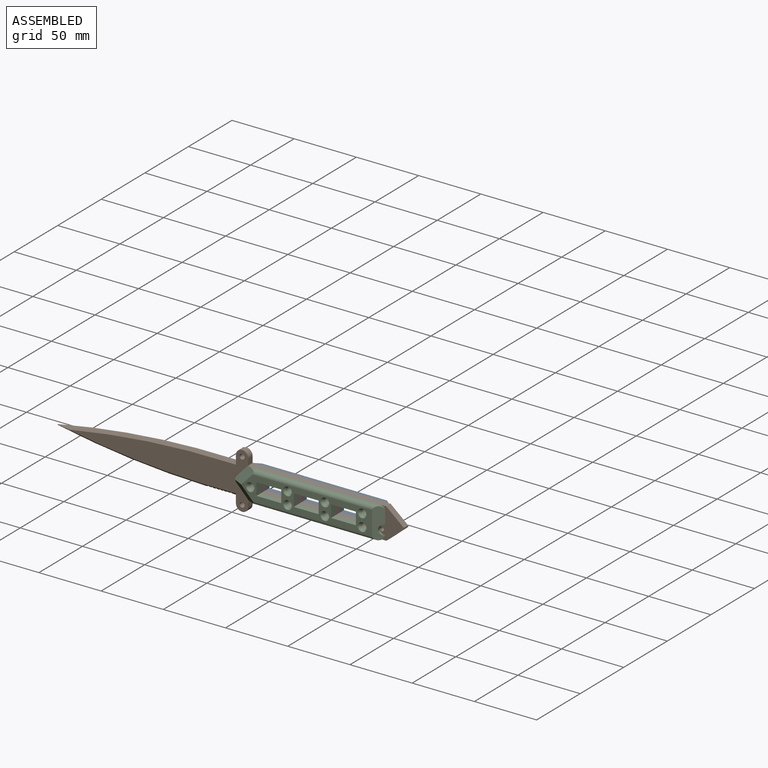
[diagram: assembled view]
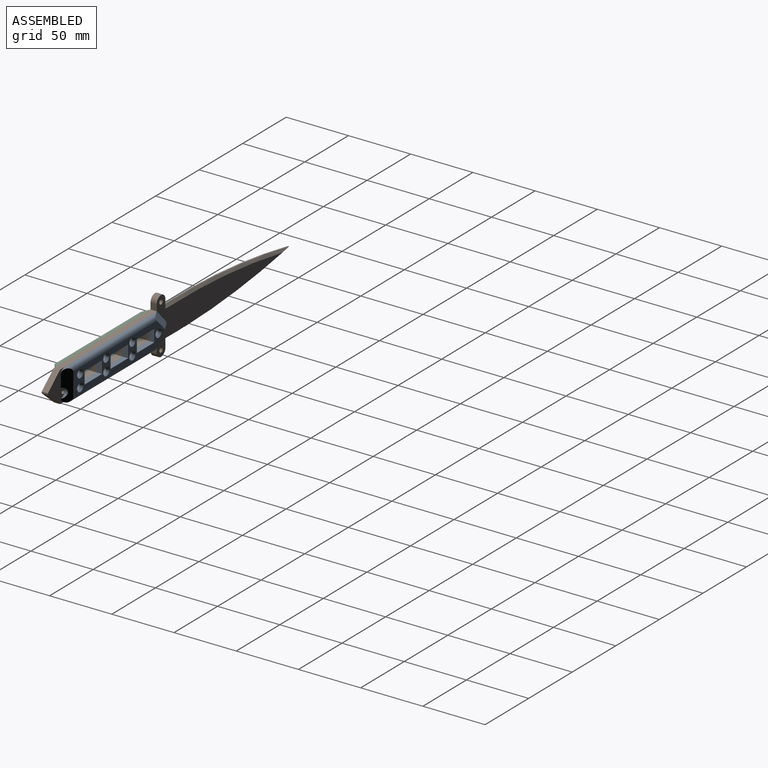
[diagram: assembled view, second angle]
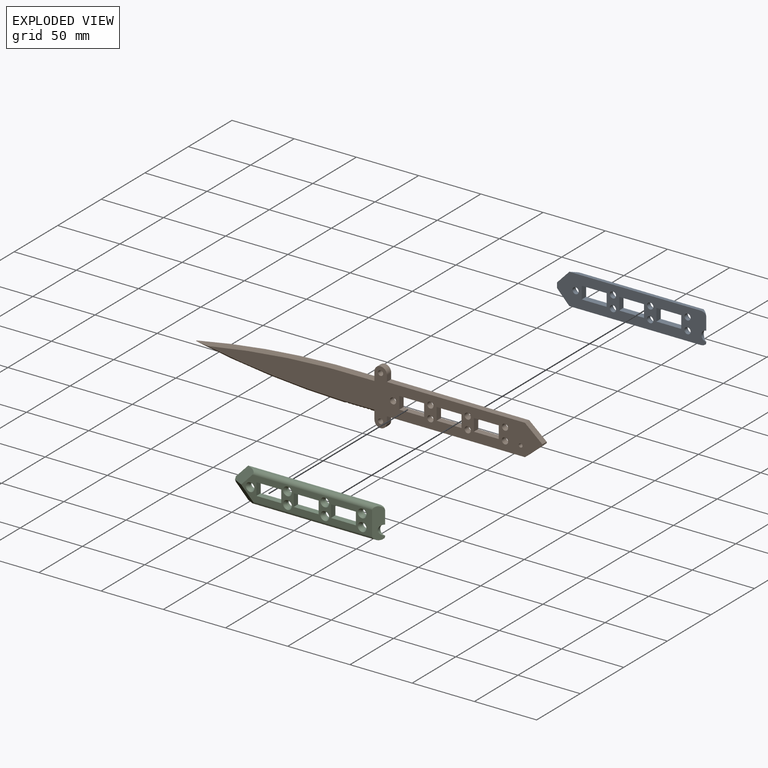
[diagram: exploded view]
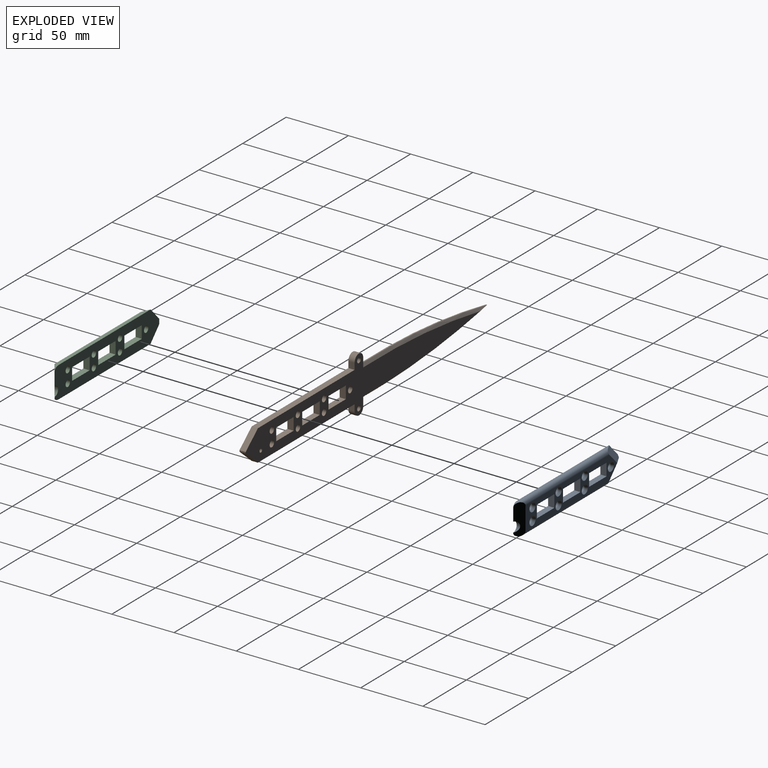
[diagram: exploded view, second angle]
ASSEMBLY  parts=3 mates=2
PART A: 39 faces, bbox 120x5x25 mm
  f0: plane 9.94x5mm, normal (1,0,0), area 49.7mm2, adj f1,f17,f25,f26
  f1: plane 20.01x5mm, normal (0,0,-1), area 100mm2, adj f0,f2,f25,f26
  f2: plane 9.94x5mm, normal (-1,0,0), area 49.7mm2, adj f1,f17,f25,f26
  f3: plane 20.01x5mm, normal (0,0,1), area 100.1mm2, adj f4,f19,f25,f26
  f4: plane 9.94x5mm, normal (1,0,0), area 49.7mm2, adj f3,f5,f25,f26
  f5: plane 20.01x5mm, normal (0,0,-1), area 100.1mm2, adj f4,f19,f25,f26
  f6: plane 19.99x5mm, normal (0,0,1), area 99.9mm2, adj f7,f23,f25,f26
  f7: plane 9.94x5mm, normal (1,0,0), area 49.7mm2, adj f6,f8,f25,f26
  f8: plane 19.99x5mm, normal (0,0,-1), area 99.9mm2, adj f7,f23,f25,f26
  f9: plane 105.06x2mm, normal (0,0,-1), area 206.3mm2, adj f10,f26,f34,f37
  f10: extruded ~4.95x3.54mm, area 8.4mm2, adj f9,f11,f26,f36,f37
  f11: cylinder r=3.97mm len=7.95mm, axis (0,-1,0), area 22.6mm2, adj f10,f26,f36
  f12: extruded ~4.95x3.76mm, area 8.4mm2, adj f13,f26,f36,f38
  f13: plane 105.06x2mm, normal (0,0,1), area 206.2mm2, adj f12,f26,f35,f38
  f14: plane 4.02x0.99mm, normal (-1,0,0), area 2mm2, adj f26,f34,f35
  f15: cylinder r=2.51mm len=5.02mm, axis (0,-1,0), area 47.4mm2, adj f26,f28
  f16: cylinder r=2.51mm len=5.02mm, axis (0,-1,0), area 47.3mm2, adj f26,f30
  f17: plane 20.01x5mm, normal (0,0,1), area 100mm2, adj f0,f2,f25,f26
  f18: cylinder r=2.51mm len=5.02mm, axis (0,-1,0), area 47.3mm2, adj f26,f29
  f19: plane 9.94x5mm, normal (-1,0,0), area 49.7mm2, adj f3,f5,f25,f26
  f20: cylinder r=2.5mm len=5.01mm, axis (0,-1,0), area 47.2mm2, adj f26,f33
  f21: cylinder r=2.49mm len=4.98mm, axis (0,-1,0), area 46.9mm2, adj f26,f32
  f22: cylinder r=2.48mm len=4.96mm, axis (0,-1,0), area 46.8mm2, adj f26,f31
  f23: plane 9.94x5mm, normal (-1,0,0), area 49.7mm2, adj f6,f8,f25,f26
  f24: cylinder r=2.48mm len=4.97mm, axis (0,-1,0), area 46.8mm2, adj f26,f27
  f25: plane 105.23x18.97mm, normal (0,1,0), area 1045.6mm2, adj f0,f1,f2,f3,f4,f5,f6,f7
  f26: plane 119.98x24.97mm, normal (0,-1,0), area 2127.3mm2, adj f0,f1,f2,f3,f4,f5,f6,f7
  f27: cone r=2.48mm half-angle=26.6deg, axis (0,1,0), area 41.9mm2, adj f24,f25
  f28: cone r=2.51mm half-angle=26.6deg, axis (0,1,0), area 42.3mm2, adj f15,f25
  f29: cone r=2.51mm half-angle=26.6deg, axis (0,1,0), area 42.3mm2, adj f18,f25
  f30: cone r=2.51mm half-angle=26.6deg, axis (0,1,0), area 42.3mm2, adj f16,f25
  f31: cone r=2.48mm half-angle=26.6deg, axis (0,1,0), area 41.9mm2, adj f22,f25
  f32: cone r=2.49mm half-angle=26.6deg, axis (0,1,0), area 42mm2, adj f21,f25
  f33: cone r=2.5mm half-angle=26.6deg, axis (0,1,0), area 42.2mm2, adj f20,f25
  f34: plane 17.43x12.51mm, normal (-0.42,0.81,-0.4), area 141.4mm2, adj f9,f14,f25,f26,f35,f37
  f35: plane 17.44x12.47mm, normal (-0.42,0.81,0.4), area 141.2mm2, adj f13,f14,f25,f26,f34,f38
  f36: plane 24.84x7mm, normal (0.58,0.81,0), area 170.2mm2, adj f10,f11,f12,f25,f26,f37,f38
  f37: cylinder r=3mm len=102.45mm, axis (-1,0,0), area 461.2mm2, adj f9,f10,f25,f34,f36
  f38: cylinder r=3mm len=102.44mm, axis (1,0,0), area 461.2mm2, adj f12,f13,f25,f35,f36
PART B: 61 faces, bbox 280x5x44.9 mm
  f0: plane 9.94x5mm, normal (-1,0,0), area 49.7mm2, adj f1,f44,f53,f54
  f1: plane 20.01x5mm, normal (0,0,1), area 100mm2, adj f0,f2,f53,f54
  f2: plane 9.94x5mm, normal (1,0,0), area 49.7mm2, adj f1,f44,f53,f54
  f3: plane 9.94x5mm, normal (-1,0,0), area 49.7mm2, adj f4,f45,f53,f54
  f4: plane 20.01x5mm, normal (0,0,1), area 100.1mm2, adj f3,f5,f53,f54
  f5: plane 9.94x5mm, normal (1,0,0), area 49.7mm2, adj f4,f45,f53,f54
  f6: plane 9.94x5mm, normal (1,0,0), area 49.7mm2, adj f7,f46,f53,f54
  f7: plane 19.99x5mm, normal (0,0,-1), area 99.9mm2, adj f6,f8,f53,f54
  f8: plane 9.94x5mm, normal (-1,0,0), area 49.7mm2, adj f7,f46,f53,f54
  f9: cylinder r=4.98mm len=5mm, axis (0,1,0), area 4.5mm2, adj f50,f53,f54
  f10: cylinder r=657.4mm len=140.02mm, axis (0,1,0), area 140.8mm2, adj f11,f51,f56,f59
  f11: cylinder r=668.75mm len=119.98mm, axis (0,1,0), area 120.8mm2, adj f10,f12,f55,f58
  f12: cylinder r=0.51mm len=2.03mm, axis (0,1,0), area 2.4mm2, adj f11,f13,f55,f58
  f13: cylinder r=1.02mm len=3.41mm, axis (0,1,0), area 8.4mm2, adj f12,f14,f55,f58
  f14: cylinder r=0.54mm len=2.27mm, axis (0,1,0), area 2.9mm2, adj f13,f15,f55,f58
  f15: cylinder r=1mm len=2.99mm, axis (0,1,0), area 6.8mm2, adj f14,f16,f55,f58
  f16: cylinder r=0.5mm len=2mm, axis (0,1,0), area 2.5mm2, adj f15,f17,f55,f58
  f17: cylinder r=1.04mm len=3.09mm, axis (0,1,0), area 7.5mm2, adj f16,f18,f55,f58
  f18: cylinder r=0.5mm len=2.01mm, axis (0,1,0), area 2.3mm2, adj f17,f19,f55,f58
  f19: cylinder r=1.01mm len=3.02mm, axis (0,1,0), area 6.9mm2, adj f18,f20,f55,f58
  f20: cylinder r=0.52mm len=2.04mm, axis (0,1,0), area 2.3mm2, adj f19,f21,f55,f58
  f21: cylinder r=1.02mm len=3.04mm, axis (0,1,0), area 7mm2, adj f20,f22,f55,f58
  f22: cylinder r=0.5mm len=2mm, axis (0,1,0), area 2.3mm2, adj f21,f23,f55,f58
  f23: cylinder r=1.02mm len=3.04mm, axis (0,1,0), area 7.1mm2, adj f22,f24,f55,f58
  f24: cylinder r=0.48mm len=1.96mm, axis (0,1,0), area 2.3mm2, adj f23,f25,f55,f58
  f25: cylinder r=1.01mm len=3.01mm, axis (0,1,0), area 7.1mm2, adj f24,f26,f55,f58
  f26: plane 3.99x0.97mm, normal (0,0,-1), area 3.5mm2, adj f25,f27,f55,f58
  f27: plane 7.06x5mm, normal (-1,0,0), area 29.2mm2, adj f26,f28,f53,f54,f55,f58
  f28: cylinder r=4.98mm len=9.96mm, axis (0,1,0), area 78.3mm2, adj f27,f29,f53,f54
  f29: plane 5x4.96mm, normal (1,0,0), area 24.8mm2, adj f28,f30,f53,f54
  f30: plane 111.02x5mm, normal (0,0,-1), area 555.1mm2, adj f29,f31,f53,f54
  f31: plane 14x11.96mm, normal (0.65,0,-0.76), area 92.1mm2, adj f30,f32,f53,f54
  f32: plane 5x1.07mm, normal (1,0,0), area 5.3mm2, adj f31,f33,f53,f54
  f33: plane 14.1x11.95mm, normal (0.65,0,0.76), area 92.4mm2, adj f32,f34,f53,f54
  f34: plane 110.92x5mm, normal (0,0,1), area 554.6mm2, adj f33,f35,f53,f54
  f35: plane 5.02x5mm, normal (1,0,0), area 25.1mm2, adj f34,f36,f53,f54
  f36: cylinder r=4.98mm len=9.96mm, axis (0,1,0), area 78.3mm2, adj f35,f37,f53,f54
  f37: plane 7.02x5mm, normal (-1,0,0), area 29.1mm2, adj f36,f51,f53,f54,f57,f60
  f38: cylinder r=2.51mm len=5.02mm, axis (0,1,0), area 78.9mm2, adj f53,f54
  f39: cylinder r=2.48mm len=5mm, axis (0,1,0), area 78mm2, adj f53,f54
  f40: cylinder r=2.51mm len=5.02mm, axis (0,1,0), area 78.8mm2, adj f53,f54
  f41: cylinder r=2.51mm len=5.02mm, axis (0,1,0), area 78.8mm2, adj f53,f54
  f42: cylinder r=2.5mm len=5.01mm, axis (0,1,0), area 78.7mm2, adj f53,f54
  f43: cylinder r=2.49mm len=5mm, axis (0,1,0), area 78.2mm2, adj f53,f54
  f44: plane 20.01x5mm, normal (0,0,-1), area 100mm2, adj f0,f2,f53,f54
  f45: plane 20.01x5mm, normal (0,0,-1), area 100.1mm2, adj f3,f5,f53,f54
  f46: plane 19.99x5mm, normal (0,0,1), area 99.9mm2, adj f6,f8,f53,f54
  f47: cylinder r=2.48mm len=5mm, axis (0,1,0), area 78mm2, adj f53,f54
  f48: cylinder r=2.01mm len=5mm, axis (0,1,0), area 63.1mm2, adj f53,f54
  f49: cylinder r=1.99mm len=5mm, axis (0,1,0), area 62.4mm2, adj f53,f54
  f50: plane 5x0.9mm, normal (0,0,1), area 4.5mm2, adj f9,f53,f54
  f51: plane 4.99x1mm, normal (0,0,1), area 5mm2, adj f10,f37,f57,f60
  f52: cylinder r=1.5mm len=5mm, axis (0,1,0), area 47mm2, adj f53,f54
  f53: plane 269.25x44.92mm, normal (0,-1,0), area 4626.7mm2, adj f0,f1,f2,f3,f4,f5,f6,f7
  f54: plane 269.25x44.92mm, normal (0,1,0), area 4626.7mm2, adj f0,f1,f2,f3,f4,f5,f6,f7
  f55: cone r=668.75mm half-angle=45deg, axis (0,-1,0), area 376.6mm2, adj f11,f12,f13,f14,f15,f16,f17,f18
  f56: cone r=657.4mm half-angle=45deg, axis (0,-1,0), area 382.9mm2, adj f10,f54,f55,f57
  f57: plane 5x2mm, normal (0,0.71,0.71), area 14.1mm2, adj f37,f51,f54,f56
  f58: cone r=666.75mm half-angle=45deg, axis (0,1,0), area 376.6mm2, adj f11,f12,f13,f14,f15,f16,f17,f18
  f59: cone r=655.4mm half-angle=45deg, axis (0,1,0), area 382.9mm2, adj f10,f53,f58,f60
  f60: plane 5x2mm, normal (0,-0.71,0.71), area 14.1mm2, adj f37,f51,f53,f59
PART C: 39 faces, bbox 120x5x25 mm
  f0: plane 9.94x5mm, normal (1,0,0), area 49.7mm2, adj f1,f17,f25,f26
  f1: plane 20.01x5mm, normal (0,0,-1), area 100mm2, adj f0,f2,f25,f26
  f2: plane 9.94x5mm, normal (-1,0,0), area 49.7mm2, adj f1,f17,f25,f26
  f3: plane 20.01x5mm, normal (0,0,1), area 100.1mm2, adj f4,f19,f25,f26
  f4: plane 9.94x5mm, normal (1,0,0), area 49.7mm2, adj f3,f5,f25,f26
  f5: plane 20.01x5mm, normal (0,0,-1), area 100.1mm2, adj f4,f19,f25,f26
  f6: plane 19.99x5mm, normal (0,0,1), area 99.9mm2, adj f7,f23,f25,f26
  f7: plane 9.94x5mm, normal (1,0,0), area 49.7mm2, adj f6,f8,f25,f26
  f8: plane 19.99x5mm, normal (0,0,-1), area 99.9mm2, adj f7,f23,f25,f26
  f9: plane 105.06x2mm, normal (0,0,-1), area 206.3mm2, adj f10,f26,f34,f37
  f10: extruded ~4.95x3.54mm, area 8.4mm2, adj f9,f11,f26,f36,f37
  f11: cylinder r=3.97mm len=7.95mm, axis (0,1,0), area 22.6mm2, adj f10,f26,f36
  f12: extruded ~4.95x3.76mm, area 8.4mm2, adj f13,f26,f36,f38
  f13: plane 105.06x2mm, normal (0,0,1), area 206.2mm2, adj f12,f26,f35,f38
  f14: plane 4.02x0.99mm, normal (-1,0,0), area 2mm2, adj f26,f34,f35
  f15: cylinder r=2.51mm len=5.02mm, axis (0,1,0), area 47.4mm2, adj f26,f28
  f16: cylinder r=2.51mm len=5.02mm, axis (0,1,0), area 47.3mm2, adj f26,f30
  f17: plane 20.01x5mm, normal (0,0,1), area 100mm2, adj f0,f2,f25,f26
  f18: cylinder r=2.51mm len=5.02mm, axis (0,1,0), area 47.3mm2, adj f26,f29
  f19: plane 9.94x5mm, normal (-1,0,0), area 49.7mm2, adj f3,f5,f25,f26
  f20: cylinder r=2.5mm len=5.01mm, axis (0,1,0), area 47.2mm2, adj f26,f33
  f21: cylinder r=2.49mm len=4.98mm, axis (0,1,0), area 46.9mm2, adj f26,f32
  f22: cylinder r=2.48mm len=4.96mm, axis (0,1,0), area 46.8mm2, adj f26,f31
  f23: plane 9.94x5mm, normal (-1,0,0), area 49.7mm2, adj f6,f8,f25,f26
  f24: cylinder r=2.48mm len=4.97mm, axis (0,1,0), area 46.8mm2, adj f26,f27
  f25: plane 105.23x18.97mm, normal (0,-1,0), area 1045.6mm2, adj f0,f1,f2,f3,f4,f5,f6,f7
  f26: plane 119.98x24.97mm, normal (0,1,0), area 2127.3mm2, adj f0,f1,f2,f3,f4,f5,f6,f7
  f27: cone r=2.48mm half-angle=26.6deg, axis (0,-1,0), area 41.9mm2, adj f24,f25
  f28: cone r=2.51mm half-angle=26.6deg, axis (0,-1,0), area 42.3mm2, adj f15,f25
  f29: cone r=2.51mm half-angle=26.6deg, axis (0,-1,0), area 42.3mm2, adj f18,f25
  f30: cone r=2.51mm half-angle=26.6deg, axis (0,-1,0), area 42.3mm2, adj f16,f25
  f31: cone r=2.48mm half-angle=26.6deg, axis (0,-1,0), area 41.9mm2, adj f22,f25
  f32: cone r=2.49mm half-angle=26.6deg, axis (0,-1,0), area 42mm2, adj f21,f25
  f33: cone r=2.5mm half-angle=26.6deg, axis (0,-1,0), area 42.2mm2, adj f20,f25
  f34: plane 17.43x12.51mm, normal (-0.42,-0.81,-0.4), area 141.4mm2, adj f9,f14,f25,f26,f35,f37
  f35: plane 17.44x12.47mm, normal (-0.42,-0.81,0.4), area 141.2mm2, adj f13,f14,f25,f26,f34,f38
  f36: plane 24.84x7mm, normal (0.58,-0.81,0), area 170.2mm2, adj f10,f11,f12,f25,f26,f37,f38
  f37: cylinder r=3mm len=102.45mm, axis (-1,0,0), area 461.2mm2, adj f9,f10,f25,f34,f36
  f38: cylinder r=3mm len=102.44mm, axis (1,0,0), area 461.2mm2, adj f12,f13,f25,f35,f36
PLACE A t=(62.12,1.88,6.76)mm
PLACE B t=(-71.05,1.88,-17.27)mm
PLACE C t=(62.12,-3.12,6.76)mm
MATE slider A.f22 <-> B.f47  axis (0,-1,0) through (20.44,1.88,0.28)mm
MATE slider C.f22 <-> B.f47  axis (0,1,0) through (20.44,-3.12,0.28)mm
